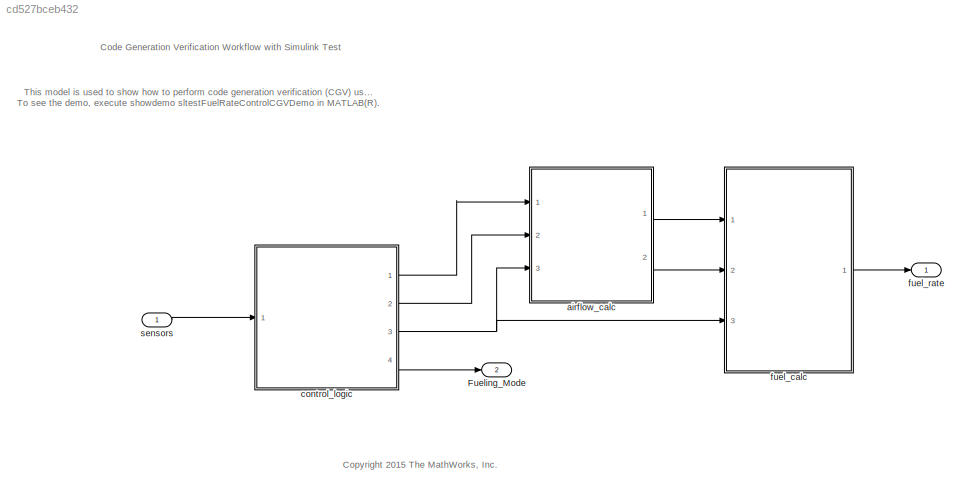
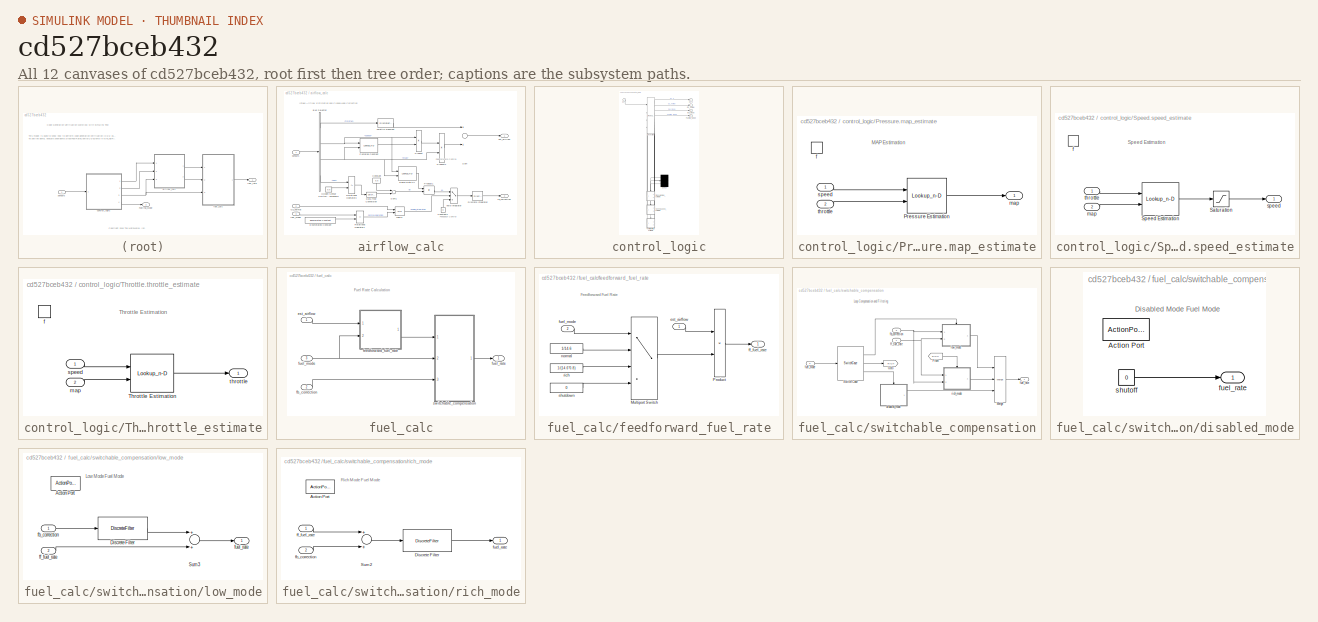
[diagram: thumbnail index - all 12 canvases of the model, root first then tree order]
MODEL slx_cd527bceb432
KIND model
CONFIG AbsTol = 1e-6
CONFIG FixedStep = 0.01
CONFIG MaxStep = auto
CONFIG MinStep = auto
CONFIG PostLoadFcn = load sltestFuelRateControlData.mat
CONFIG RelTol = 1e-5
CONFIG SampleTimeConstraint = Unconstrained
CONFIG Solver = FixedStepDiscrete
CONFIG SolverMode = SingleTasking
CONFIG SolverName = FixedStepDiscrete
CONFIG StartTime = 0.0
CONFIG StopTime = 2000
WORKSPACE source: MAT-file member
WORKSPACE PressEst = [0.806253176324 0.553142316929 0.37151500209 0.277667903103 0.220198954207 0.181288665766 0.153200000489 0.115431020872 0.0913067476324 0.0746519188607 0.0625231108324 0.0533383634277 ... (306 elements, 18x17)]
WORKSPACE PressVect = [0.05 0.1 0.15 0.2 0.25 0.3 0.35 0.4 0.45 0.5 0.55 0.6 ... (19 elements, 1x19)]
BLOCK [Outport] Fueling_Mode
  IconDisplay = Port number
  Port = 2
  PortDimensions = 1
  SampleTime = [0.01,0]
  SamplingMode = Sample based
  SignalType = real
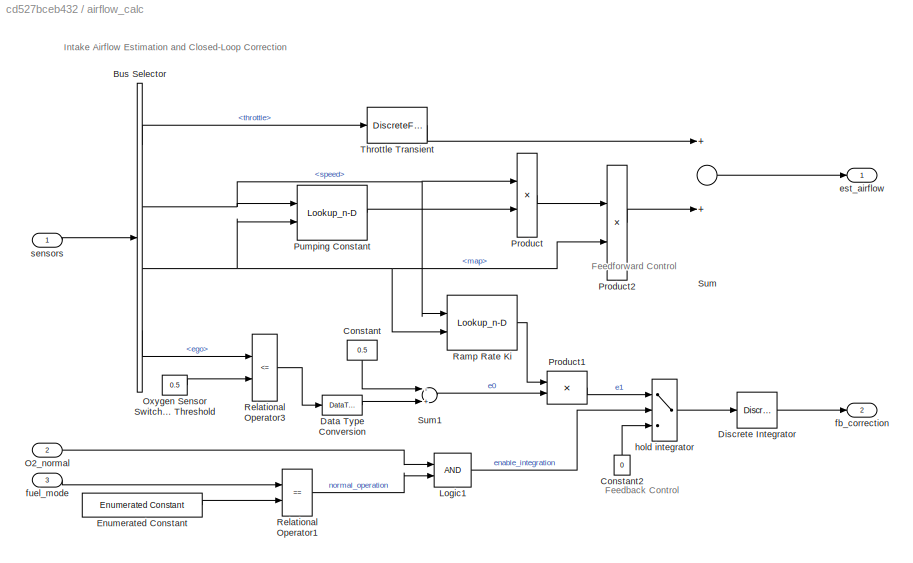
BLOCK [SubSystem] airflow_calc
  Ports = [3, 2]
  RequestExecContextInheritance = off
  Variant = off
BLOCK [BusSelector] airflow_calc/Bus Selector
  OutputSignals = throttle,speed,map,ego
  Ports = [1, 4]
BLOCK [Constant] airflow_calc/Constant
  OutDataTypeStr = s16En7
  Value = 0.5
BLOCK [Constant] airflow_calc/Constant2
  OutDataTypeStr = uint8
  Value = 0
BLOCK [DataTypeConversion] airflow_calc/Data Type Conversion
  OutDataTypeStr = s16En7
  RndMeth = Simplest
  SaturateOnIntegerOverflow = off
BLOCK [DiscreteIntegrator] airflow_calc/Discrete Integrator
  ICPrevOutput = DiscIntNeverNeededParam
  ICPrevScaledInput = DiscIntNeverNeededParam
  InitialConditionSetting = State (most efficient)
  OutDataTypeStr = s16En15
  Ports = [1, 1]
  RndMeth = Simplest
  SampleTime = -1
BLOCK [Reference] airflow_calc/Enumerated Constant  REF=simulink/Sources/Enumerated
Constant
  Ports = [0, 1]
  SourceBlock = simulink/Sources/Enumerated\nConstant
  SourceType = Enumerated Constant
BLOCK [Logic] airflow_calc/Logic1
  AllPortsSameDT = off
  IconShape = distinctive
  OutDataTypeStr = boolean
  Ports = [2, 1]
BLOCK [Inport] airflow_calc/O2_normal
  IconDisplay = Port number
  Port = 2
BLOCK [Constant] airflow_calc/Oxygen Sensor Switching Threshold
  OutDataTypeStr = s16En7
  Value = 0.5
BLOCK [Product] airflow_calc/Product
  InputSameDT = off
  OutDataTypeStr = s16En7
  Ports = [2, 1]
  RndMeth = Simplest
  SaturateOnIntegerOverflow = off
BLOCK [Product] airflow_calc/Product1
  InputSameDT = off
  OutDataTypeStr = s16En15
  Ports = [2, 1]
  RndMeth = Simplest
  SaturateOnIntegerOverflow = off
BLOCK [Product] airflow_calc/Product2
  InputSameDT = off
  OutDataTypeStr = s16En7
  Ports = [2, 1]
  RndMeth = Simplest
  SaturateOnIntegerOverflow = off
BLOCK [Lookup_n-D] airflow_calc/Pumping Constant
  BreakpointsForDimension1 = SpeedVect
  BreakpointsForDimension2 = PressVect
  ExtrapMethod = Clip
  IndexSearchMethod = Linear search
  InputSameDT = off
  OutDataTypeStr = s16En15
  Ports = [2, 1]
  RndMeth = Simplest
  Table = PumpCon
  UseLastTableValue = on
BLOCK [Lookup_n-D] airflow_calc/Ramp Rate Ki
  BreakpointsForDimension1 = RampRateKiX
  BreakpointsForDimension2 = RampRateKiY
  ExtrapMethod = Clip
  IndexSearchMethod = Linear search
  InputSameDT = off
  OutDataTypeStr = s16En15
  Ports = [2, 1]
  RndMeth = Simplest
  Table = RampRateKiZ
  UseLastTableValue = on
BLOCK [RelationalOperator] airflow_calc/Relational Operator1
  Operator = ==
  OutDataTypeStr = boolean
  Ports = [2, 1]
BLOCK [RelationalOperator] airflow_calc/Relational Operator3
  InputSameDT = off
  Operator = <=
  OutDataTypeStr = boolean
  Ports = [2, 1]
BLOCK [Sum] airflow_calc/Sum
  InputSameDT = off
  Inputs = 2
  OutDataTypeStr = s16En7
  Ports = [2, 1]
  RndMeth = Simplest
  SaturateOnIntegerOverflow = off
BLOCK [Sum] airflow_calc/Sum1
  InputSameDT = off
  Inputs = -+
  OutDataTypeStr = s16En15
  Ports = [2, 1]
  RndMeth = Simplest
  SaturateOnIntegerOverflow = off
BLOCK [DiscreteFilter] airflow_calc/Throttle Transient
  Denominator = [1 -.8]
  InputPortMap = u0
  Numerator = [.01 -.01]
  OutDataTypeStr = s16En7
  Ports = [1, 1]
  RndMeth = Simplest
  a0EqualsOne = on
BLOCK [Outport] airflow_calc/est_airflow
  IconDisplay = Port number
BLOCK [Outport] airflow_calc/fb_correction
  IconDisplay = Port number
  Port = 2
BLOCK [Inport] airflow_calc/fuel_mode
  IconDisplay = Port number
  Port = 3
BLOCK [Switch] airflow_calc/hold integrator
  Criteria = u2 ~= 0
  InputSameDT = off
  OutDataTypeStr = s16En15
  RndMeth = Simplest
  SaturateOnIntegerOverflow = off
  Threshold = 1
BLOCK [Inport] airflow_calc/sensors
  IconDisplay = Port number
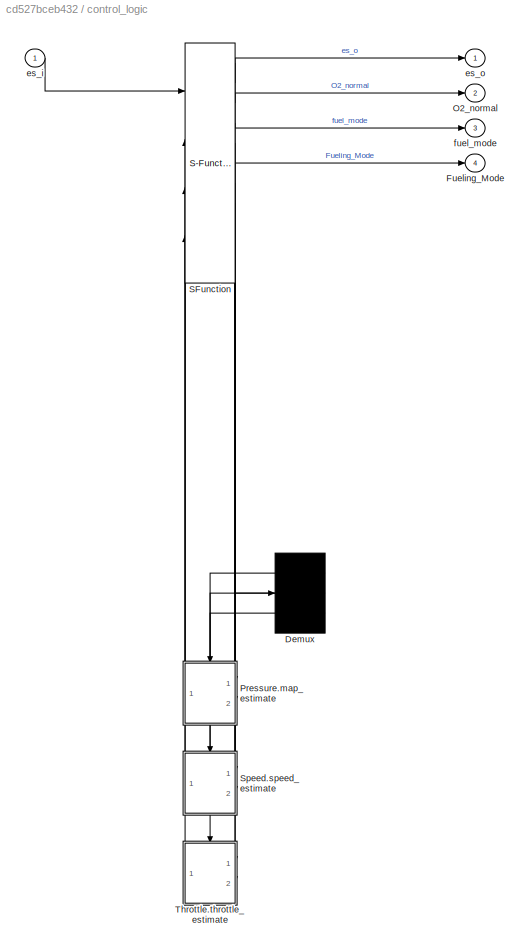
BLOCK [SubSystem] control_logic
  Description = Stateflow diagram to determine control system operating mode
  ErrorFcn = Stateflow.Translate.translate
  PermitHierarchicalResolution = ExplicitOnly
  Ports = [1, 4]
  RequestExecContextInheritance = off
  SFBlockType = Chart
  TreatAsAtomicUnit = on
  Variant = off
BLOCK [Demux] control_logic/ Demux 
  Outputs = 3
  Ports = [1, 3]
BLOCK [Outport] control_logic/ Fueling_Mode
  IconDisplay = Port number
  Port = 4
BLOCK [Outport] control_logic/ O2_normal
  IconDisplay = Port number
  Port = 2
BLOCK [S-Function] control_logic/ SFunction 
  EnableBusSupport = off
  FunctionName = sf_sfun
  Parameters = hys,max_ego,max_press,max_speed,max_throt,min_press,min_throt,zero_thresh
  PortCounts = [4 11]
  Ports = [4, 11]
  SFunctionDeploymentMode = off
  Tag = Stateflow S-Function sltestFuelRateControlExample 1
BLOCK [SubSystem] control_logic/Pressure.map_estimate
  Ports = [2, 1, 0, 1]
  PreDeleteFcn = Stateflow.SLINSF.SimulinkMan.removePreDeleteFcn
  RequestExecContextInheritance = off
  UndoDeleteFcn = Stateflow.SLINSF.SimulinkMan.restorePreDeleteFcn
  Variant = off
BLOCK [Lookup_n-D] control_logic/Pressure.map_estimate/Pressure Estimation
  BreakpointsForDimension1 = SpeedVect
  BreakpointsForDimension2 = ThrotVect
  ExtrapMethod = Clip
  IndexSearchMethod = Linear search
  InputSameDT = off
  OutDataTypeStr = u8En7
  Ports = [2, 1]
  RndMeth = Simplest
  Table = PressEst
  UseLastTableValue = on
BLOCK [TriggerPort] control_logic/Pressure.map_estimate/f
  CopyFcn = Stateflow.SLINSF.SimulinkMan.removeBlockPreDeleteFcn
  Ports = []
  PreDeleteFcn = Stateflow.SLINSF.SimulinkMan.unsafePredeleteFcn
  StatesWhenEnabling = held
  TriggerType = function-call
  VariantControl = Variant
BLOCK [Outport] control_logic/Pressure.map_estimate/map
  IconDisplay = Port number
BLOCK [Inport] control_logic/Pressure.map_estimate/speed
  IconDisplay = Port number
  OutDataTypeStr = s16En3
BLOCK [Inport] control_logic/Pressure.map_estimate/throttle
  IconDisplay = Port number
  OutDataTypeStr = s16En3
  Port = 2
BLOCK [SubSystem] control_logic/Speed.speed_estimate
  Ports = [2, 1, 0, 1]
  PreDeleteFcn = Stateflow.SLINSF.SimulinkMan.removePreDeleteFcn
  RequestExecContextInheritance = off
  UndoDeleteFcn = Stateflow.SLINSF.SimulinkMan.restorePreDeleteFcn
  Variant = off
BLOCK [Saturate] control_logic/Speed.speed_estimate/Saturation
  InputPortMap = u0
  LowerLimit = 0
  OutDataTypeStr = s16En3
  Ports = [1, 1]
  UpperLimit = max_speed
BLOCK [Lookup_n-D] control_logic/Speed.speed_estimate/Speed Estimation
  BreakpointsForDimension1 = ThrotVect
  BreakpointsForDimension2 = PressVect
  ExtrapMethod = Clip
  IndexSearchMethod = Linear search
  InputSameDT = off
  OutDataTypeStr = s16En3
  Ports = [2, 1]
  RndMeth = Simplest
  Table = SpeedEst
  UseLastTableValue = on
BLOCK [TriggerPort] control_logic/Speed.speed_estimate/f
  CopyFcn = Stateflow.SLINSF.SimulinkMan.removeBlockPreDeleteFcn
  Ports = []
  PreDeleteFcn = Stateflow.SLINSF.SimulinkMan.unsafePredeleteFcn
  StatesWhenEnabling = held
  TriggerType = function-call
  VariantControl = Variant
BLOCK [Inport] control_logic/Speed.speed_estimate/map
  IconDisplay = Port number
  OutDataTypeStr = u8En7
  Port = 2
BLOCK [Outport] control_logic/Speed.speed_estimate/speed
  IconDisplay = Port number
BLOCK [Inport] control_logic/Speed.speed_estimate/throttle
  IconDisplay = Port number
  OutDataTypeStr = s16En3
BLOCK [SubSystem] control_logic/Throttle.throttle_estimate
  Ports = [2, 1, 0, 1]
  PreDeleteFcn = Stateflow.SLINSF.SimulinkMan.removePreDeleteFcn
  RequestExecContextInheritance = off
  UndoDeleteFcn = Stateflow.SLINSF.SimulinkMan.restorePreDeleteFcn
  Variant = off
BLOCK [Lookup_n-D] control_logic/Throttle.throttle_estimate/Throttle Estimation
  BreakpointsForDimension1 = SpeedVect
  BreakpointsForDimension2 = PressVect
  ExtrapMethod = Clip
  IndexSearchMethod = Linear search
  InputSameDT = off
  OutDataTypeStr = s16En7
  Ports = [2, 1]
  RndMeth = Simplest
  Table = ThrotEst
  UseLastTableValue = on
BLOCK [TriggerPort] control_logic/Throttle.throttle_estimate/f
  CopyFcn = Stateflow.SLINSF.SimulinkMan.removeBlockPreDeleteFcn
  Ports = []
  PreDeleteFcn = Stateflow.SLINSF.SimulinkMan.unsafePredeleteFcn
  StatesWhenEnabling = held
  TriggerType = function-call
  VariantControl = Variant
BLOCK [Inport] control_logic/Throttle.throttle_estimate/map
  IconDisplay = Port number
  OutDataTypeStr = u8En7
  Port = 2
BLOCK [Inport] control_logic/Throttle.throttle_estimate/speed
  IconDisplay = Port number
  OutDataTypeStr = s16En3
BLOCK [Outport] control_logic/Throttle.throttle_estimate/throttle
  IconDisplay = Port number
BLOCK [Inport] control_logic/es_i
  IconDisplay = Port number
BLOCK [Outport] control_logic/es_o
  IconDisplay = Port number
BLOCK [Outport] control_logic/fuel_mode
  IconDisplay = Port number
  Port = 3
BLOCK [SubSystem] fuel_calc
  Ports = [3, 1]
  RequestExecContextInheritance = off
  Variant = off
BLOCK [Inport] fuel_calc/est_airflow
  IconDisplay = Port number
BLOCK [Inport] fuel_calc/fb_correction
  IconDisplay = Port number
  Port = 2
BLOCK [SubSystem] fuel_calc/feedforward_fuel_rate
  Ports = [2, 1]
  RequestExecContextInheritance = off
  Variant = off
BLOCK [MultiPortSwitch] fuel_calc/feedforward_fuel_rate/Multiport Switch
  DataPortIndices = {sld_FuelModes.LOW, sld_FuelModes.RICH, sld_FuelModes.DISABLED}
  DataPortOrder = Specify indices
  InputSameDT = off
  OutDataTypeStr = s16En7
  Ports = [4, 1]
  RndMeth = Simplest
  SaturateOnIntegerOverflow = off
BLOCK [Product] fuel_calc/feedforward_fuel_rate/Product
  InputSameDT = off
  OutDataTypeStr = s16En7
  Ports = [2, 1]
  RndMeth = Simplest
  SaturateOnIntegerOverflow = off
BLOCK [Inport] fuel_calc/feedforward_fuel_rate/est_airflow
  IconDisplay = Port number
BLOCK [Outport] fuel_calc/feedforward_fuel_rate/ff_fuel_rate
  IconDisplay = Port number
BLOCK [Inport] fuel_calc/feedforward_fuel_rate/fuel_mode
  IconDisplay = Port number
  Port = 2
BLOCK [Constant] fuel_calc/feedforward_fuel_rate/normal
  OutDataTypeStr = s16En7
  Value = 1/14.6
BLOCK [Constant] fuel_calc/feedforward_fuel_rate/rich
  OutDataTypeStr = s16En7
  Value = 1/(14.6*0.8)
BLOCK [Constant] fuel_calc/feedforward_fuel_rate/shutdown
  OutDataTypeStr = s16En7
  Value = 0
BLOCK [Inport] fuel_calc/fuel_mode
  IconDisplay = Port number
  Port = 3
BLOCK [Outport] fuel_calc/fuel_rate
  IconDisplay = Port number
BLOCK [SubSystem] fuel_calc/switchable_compensation
  Ports = [3, 1]
  RequestExecContextInheritance = off
  Variant = off
BLOCK [From] fuel_calc/switchable_compensation/From
  GotoTag = RICH
BLOCK [Goto] fuel_calc/switchable_compensation/Goto
  GotoTag = RICH
BLOCK [Merge] fuel_calc/switchable_compensation/Merge
  Inputs = 3
  Ports = [3, 1]
BLOCK [SwitchCase] fuel_calc/switchable_compensation/Switch Case
  CaseConditions = {sld_FuelModes.LOW, sld_FuelModes.RICH}
  Ports = [1, 3]
BLOCK [SubSystem] fuel_calc/switchable_compensation/disabled_mode
  Ports = [0, 1, 0, 0, 0, 0, 0, 1]
  RequestExecContextInheritance = off
  TreatAsAtomicUnit = on
  Variant = off
BLOCK [ActionPort] fuel_calc/switchable_compensation/disabled_mode/Action Port
  ActionType = default
BLOCK [Outport] fuel_calc/switchable_compensation/disabled_mode/fuel_rate
  IconDisplay = Port number
  InitialOutput = 0
BLOCK [Constant] fuel_calc/switchable_compensation/disabled_mode/shutoff
  OutDataTypeStr = Inherit: Inherit via back propagation
  Value = 0
BLOCK [Inport] fuel_calc/switchable_compensation/fb_correction
  IconDisplay = Port number
  Port = 3
BLOCK [Inport] fuel_calc/switchable_compensation/ff_fuel_rate
  IconDisplay = Port number
BLOCK [Inport] fuel_calc/switchable_compensation/fuel_mode
  IconDisplay = Port number
  Port = 2
BLOCK [Outport] fuel_calc/switchable_compensation/fuel_rate
  IconDisplay = Port number
BLOCK [SubSystem] fuel_calc/switchable_compensation/low_mode
  Ports = [2, 1, 0, 0, 0, 0, 0, 1]
  RequestExecContextInheritance = off
  TreatAsAtomicUnit = on
  Variant = off
BLOCK [ActionPort] fuel_calc/switchable_compensation/low_mode/Action Port
  ActionType = case
BLOCK [DiscreteFilter] fuel_calc/switchable_compensation/low_mode/Discrete Filter
  Denominator = [1 -0.7408]
  InputPortMap = u0
  Numerator = [8.7696 -8.5104]
  OutDataTypeStr = Inherit: Same as input
  Ports = [1, 1]
  RndMeth = Simplest
  a0EqualsOne = on
BLOCK [Sum] fuel_calc/switchable_compensation/low_mode/Sum3
  InputSameDT = off
  OutDataTypeStr = s16En7
  Ports = [2, 1]
  RndMeth = Simplest
  SaturateOnIntegerOverflow = off
BLOCK [Inport] fuel_calc/switchable_compensation/low_mode/fb_correction
  IconDisplay = Port number
BLOCK [Inport] fuel_calc/switchable_compensation/low_mode/ff_fuel_rate
  IconDisplay = Port number
  Port = 2
BLOCK [Outport] fuel_calc/switchable_compensation/low_mode/fuel_rate
  IconDisplay = Port number
  InitialOutput = 0
BLOCK [SubSystem] fuel_calc/switchable_compensation/rich_mode
  Ports = [2, 1, 0, 0, 0, 0, 0, 1]
  RequestExecContextInheritance = off
  TreatAsAtomicUnit = on
  Variant = off
BLOCK [ActionPort] fuel_calc/switchable_compensation/rich_mode/Action Port
  ActionType = case
BLOCK [DiscreteFilter] fuel_calc/switchable_compensation/rich_mode/Discrete Filter
  Denominator = [1 -0.7408]
  InputPortMap = u0
  Numerator = [0 0.2592]
  OutDataTypeStr = Inherit: Same as input
  Ports = [1, 1]
  RndMeth = Simplest
  a0EqualsOne = on
BLOCK [Sum] fuel_calc/switchable_compensation/rich_mode/Sum2
  InputSameDT = off
  OutDataTypeStr = s16En7
  Ports = [2, 1]
  RndMeth = Simplest
  SaturateOnIntegerOverflow = off
BLOCK [Inport] fuel_calc/switchable_compensation/rich_mode/fb_correction
  IconDisplay = Port number
  Port = 2
BLOCK [Inport] fuel_calc/switchable_compensation/rich_mode/ff_fuel_rate
  IconDisplay = Port number
BLOCK [Outport] fuel_calc/switchable_compensation/rich_mode/fuel_rate
  IconDisplay = Port number
  InitialOutput = 0
BLOCK [Outport] fuel_rate
  IconDisplay = Port number
  OutDataTypeStr = single
  PortDimensions = 1
  SampleTime = [0.01,0]
  SamplingMode = Sample based
  SignalType = real
BLOCK [Inport] sensors
  BusOutputAsStruct = on
  IconDisplay = Port number
  OutDataTypeStr = Bus: EngSensors
  PortDimensions = 1
  SampleTime = [0.01,0]
ANNOTATION (root): This model is used to show how to perform code generation verification (CGV) using test harnesses, Test Sequence blocks and the test manager. To see the demo, execute showdemo sltestFuelRateControlCGVDemo in MATLAB(R).
ANNOTATION (root): Code Generation Verification Workflow with Simulink Test
ANNOTATION (root): <copyright redacted>
ANNOTATION airflow_calc: Feedback Control
ANNOTATION airflow_calc: Feedforward Control
ANNOTATION airflow_calc: Intake Airflow Estimation and Closed-Loop Correction
ANNOTATION control_logic/Pressure.map_estimate: MAP Estimation
ANNOTATION control_logic/Speed.speed_estimate: Speed Estimation
ANNOTATION control_logic/Throttle.throttle_estimate: Throttle Estimation
ANNOTATION fuel_calc: Fuel Rate Calculation
ANNOTATION fuel_calc/feedforward_fuel_rate: Feedforward Fuel Rate
ANNOTATION fuel_calc/switchable_compensation: Loop Compensation and Filtering
ANNOTATION fuel_calc/switchable_compensation/disabled_mode: Disabled Mode Fuel Mode
ANNOTATION fuel_calc/switchable_compensation/low_mode: Low Mode Fuel Mode
ANNOTATION fuel_calc/switchable_compensation/rich_mode: Rich Mode Fuel Mode
LINE airflow_calc/Bus Selector:1 -> airflow_calc/Throttle Transient:1
NET airflow_calc/Bus Selector:2 -> airflow_calc/Product:1, airflow_calc/Pumping Constant:1, airflow_calc/Ramp Rate Ki:1
NET airflow_calc/Bus Selector:3 -> airflow_calc/Product2:2, airflow_calc/Pumping Constant:2, airflow_calc/Ramp Rate Ki:2
LINE airflow_calc/Bus Selector:4 -> airflow_calc/Relational Operator3:1
LINE airflow_calc/Constant2:1 -> airflow_calc/hold integrator:3
LINE airflow_calc/Constant:1 -> airflow_calc/Sum1:1
LINE airflow_calc/Data Type Conversion:1 -> airflow_calc/Sum1:2
LINE airflow_calc/Discrete Integrator:1 -> airflow_calc/fb_correction:1
LINE airflow_calc/Enumerated Constant:1 -> airflow_calc/Relational Operator1:2
LINE airflow_calc/Logic1:1 -> airflow_calc/hold integrator:2
LINE airflow_calc/O2_normal:1 -> airflow_calc/Logic1:1
LINE airflow_calc/Oxygen Sensor Switching Threshold:1 -> airflow_calc/Relational Operator3:2
LINE airflow_calc/Product1:1 -> airflow_calc/hold integrator:1
LINE airflow_calc/Product2:1 -> airflow_calc/Sum:2
LINE airflow_calc/Product:1 -> airflow_calc/Product2:1
LINE airflow_calc/Pumping Constant:1 -> airflow_calc/Product:2
LINE airflow_calc/Ramp Rate Ki:1 -> airflow_calc/Product1:1
LINE airflow_calc/Relational Operator1:1 -> airflow_calc/Logic1:2
LINE airflow_calc/Relational Operator3:1 -> airflow_calc/Data Type Conversion:1
LINE airflow_calc/Sum1:1 -> airflow_calc/Product1:2
LINE airflow_calc/Sum:1 -> airflow_calc/est_airflow:1
LINE airflow_calc/Throttle Transient:1 -> airflow_calc/Sum:1
LINE airflow_calc/fuel_mode:1 -> airflow_calc/Relational Operator1:1
LINE airflow_calc/hold integrator:1 -> airflow_calc/Discrete Integrator:1
LINE airflow_calc/sensors:1 -> airflow_calc/Bus Selector:1
LINE airflow_calc:1 -> fuel_calc:1
LINE airflow_calc:2 -> fuel_calc:2
LINE control_logic:1 -> airflow_calc:1
LINE control_logic:2 -> airflow_calc:2
NET control_logic:3 -> airflow_calc:3, fuel_calc:3
LINE control_logic:4 -> Fueling_Mode:1
LINE fuel_calc/est_airflow:1 -> fuel_calc/feedforward_fuel_rate:1
LINE fuel_calc/fb_correction:1 -> fuel_calc/switchable_compensation:3
LINE fuel_calc/feedforward_fuel_rate/Multiport Switch:1 -> fuel_calc/feedforward_fuel_rate/Product:2
LINE fuel_calc/feedforward_fuel_rate/Product:1 -> fuel_calc/feedforward_fuel_rate/ff_fuel_rate:1
LINE fuel_calc/feedforward_fuel_rate/est_airflow:1 -> fuel_calc/feedforward_fuel_rate/Product:1
LINE fuel_calc/feedforward_fuel_rate/fuel_mode:1 -> fuel_calc/feedforward_fuel_rate/Multiport Switch:1
LINE fuel_calc/feedforward_fuel_rate/normal:1 -> fuel_calc/feedforward_fuel_rate/Multiport Switch:2
LINE fuel_calc/feedforward_fuel_rate/rich:1 -> fuel_calc/feedforward_fuel_rate/Multiport Switch:3
LINE fuel_calc/feedforward_fuel_rate/shutdown:1 -> fuel_calc/feedforward_fuel_rate/Multiport Switch:4
LINE fuel_calc/feedforward_fuel_rate:1 -> fuel_calc/switchable_compensation:1
NET fuel_calc/fuel_mode:1 -> fuel_calc/feedforward_fuel_rate:2, fuel_calc/switchable_compensation:2
LINE fuel_calc/switchable_compensation/From:1 -> fuel_calc/switchable_compensation/rich_mode:ifaction
LINE fuel_calc/switchable_compensation/Merge:1 -> fuel_calc/switchable_compensation/fuel_rate:1
LINE fuel_calc/switchable_compensation/Switch Case:1 -> fuel_calc/switchable_compensation/low_mode:ifaction
LINE fuel_calc/switchable_compensation/Switch Case:2 -> fuel_calc/switchable_compensation/Goto:1
LINE fuel_calc/switchable_compensation/Switch Case:3 -> fuel_calc/switchable_compensation/disabled_mode:ifaction
LINE fuel_calc/switchable_compensation/disabled_mode/shutoff:1 -> fuel_calc/switchable_compensation/disabled_mode/fuel_rate:1
LINE fuel_calc/switchable_compensation/disabled_mode:1 -> fuel_calc/switchable_compensation/Merge:3
NET fuel_calc/switchable_compensation/fb_correction:1 -> fuel_calc/switchable_compensation/low_mode:1, fuel_calc/switchable_compensation/rich_mode:2
NET fuel_calc/switchable_compensation/ff_fuel_rate:1 -> fuel_calc/switchable_compensation/low_mode:2, fuel_calc/switchable_compensation/rich_mode:1
LINE fuel_calc/switchable_compensation/fuel_mode:1 -> fuel_calc/switchable_compensation/Switch Case:1
LINE fuel_calc/switchable_compensation/low_mode/Discrete Filter:1 -> fuel_calc/switchable_compensation/low_mode/Sum3:1
LINE fuel_calc/switchable_compensation/low_mode/Sum3:1 -> fuel_calc/switchable_compensation/low_mode/fuel_rate:1
LINE fuel_calc/switchable_compensation/low_mode/fb_correction:1 -> fuel_calc/switchable_compensation/low_mode/Discrete Filter:1
LINE fuel_calc/switchable_compensation/low_mode/ff_fuel_rate:1 -> fuel_calc/switchable_compensation/low_mode/Sum3:2
LINE fuel_calc/switchable_compensation/low_mode:1 -> fuel_calc/switchable_compensation/Merge:1
LINE fuel_calc/switchable_compensation/rich_mode/Discrete Filter:1 -> fuel_calc/switchable_compensation/rich_mode/fuel_rate:1
LINE fuel_calc/switchable_compensation/rich_mode/Sum2:1 -> fuel_calc/switchable_compensation/rich_mode/Discrete Filter:1
LINE fuel_calc/switchable_compensation/rich_mode/fb_correction:1 -> fuel_calc/switchable_compensation/rich_mode/Sum2:2
LINE fuel_calc/switchable_compensation/rich_mode/ff_fuel_rate:1 -> fuel_calc/switchable_compensation/rich_mode/Sum2:1
LINE fuel_calc/switchable_compensation/rich_mode:1 -> fuel_calc/switchable_compensation/Merge:2
LINE fuel_calc/switchable_compensation:1 -> fuel_calc/fuel_rate:1
LINE fuel_calc:1 -> fuel_rate:1
LINE sensors:1 -> control_logic:1
note: NET lines group one-source signal fan-out (src -> all destinations, sorted); 1:1 wires keep LINE
CHART Assess Controller states=3 transitions=3
  STATE_LABEL 'GeneralAssessment'
  STATE_LABEL 'Warmup\nassert(fueling_mode == Fueling_ModeType.Warmup)'
  STATE_LABEL "Overspeed\nif(act_speed > 628) % max_speed = 628\n    assert(fueling_mode == Fueling_ModeType.Overspeed,'Not in Overspeed')\nend\n\n% Multifailure\n\nif(sensors.ego == 12 && sensors.map == 0)\n    assert(fueling_mode ~= Fueling_ModeType.Single_Failure, 'Not in Single_Failure')\nend"
  STATE_LABEL '[et >= 4.8]'
  STATE_LABEL 'Warmup\nassert(fueling_mode == Fueling_ModeType.Warmup)'
  STATE_LABEL "Overspeed\nif(act_speed > 628) % max_speed = 628\n    assert(fueling_mode == Fueling_ModeType.Overspeed,'Not in Overspeed')\nend\n\n% Multifailure\n\nif(sensors.ego == 12 && sensors.map == 0)\n    assert(fueling_mode ~= Fueling_ModeType.Single_Failure, 'Not in Single_Failure')\nend"
CHART Engine Gas Dynamics/Throttle & Manifold/Throttle/f(theta) states=1 transitions=1
  STATE_LABEL 'eML_blk_kernel()'
  STATE_LABEL 'SCRIPT:\nfunction y = f(u)\n%#codegen\n\ny = 2.821 - 0.05231*u + 0.10299*u^2 - 0.00063*u^3;'
CHART Engine Gas Dynamics/Throttle & Manifold/Throttle/g(pratio) states=1 transitions=1
  STATE_LABEL 'eML_blk_kernel()'
  STATE_LABEL 'SCRIPT:\nfunction y = g(u)\n%#codegen\n\ny = 2*sqrt(u - u^2);'
CHART Engine Gas Dynamics/Throttle & Manifold/Intake Manifold/MATLAB Function states=1 transitions=1
  STATE_LABEL 'eML_blk_kernel()'
  STATE_LABEL 'SCRIPT:\nfunction y = pumping(u1,u2)\n%#codegen\n\ny = -0.366 + 0.08979*u1*u2 - 0.0337*u2*u1^2 + 0.0001*u1*u2^2;'
CHART Engine Gas Dynamics/Mixing & Combustion/EGO Sensor states=1 transitions=1
  STATE_LABEL 'eML_blk_kernel()'
  STATE_LABEL 'SCRIPT:\nfunction y = fcn(u)\n%#codegen\n\ny = (1-tanh(4*(u-14.6)))/2;'
CHART Sequence
Sensor Failures states=16 transitions=16
  STATE_LABEL 'Stabilize_Engine\n\nthrottle = 20;  %  0 ==> sensor failure\nspeed = 300; %  0 ==> sensor failure\nego = ego_i;  % 12 ==> sensor failure\nmap = map_i; % 0 ==> sensor failure\nthrottle_act = throttle;\nspeed_act = speed;'
  STATE_LABEL 'Test_Scenarios\n\nthrottle= 10;\nthrottle_act = throttle;\nspeed = 400;\nspeed_act = speed;\nego = ego_i;\nmap = map_i;'
  STATE_LABEL 'Test_Overspeed\nthrottle = 30;\nthrottle_act = throttle;\nspeed = 300+ramp(10*et);\nspeed_act = speed;'
  STATE_LABEL 'Reset_to_Normal_Speed\nthrottle = 10;\nthrottle_act = throttle;\nspeed = 700-ramp(10*et);\nspeed_act = speed;'
  STATE_LABEL 'Waypoint'
  STATE_LABEL 'Test_EGO_Fault\nego = 12;'
  STATE_LABEL 'EGO_Reset'
  STATE_LABEL 'Test_Throttle_Fault\nthrottle = 0;'
  STATE_LABEL 'Throttle_Reset'
  STATE_LABEL 'Test_Speed_Fault\nspeed = 0;'
  STATE_LABEL 'Speed_Reset'
  STATE_LABEL 'Test_MAP_Fault\nmap = 0;'
  STATE_LABEL 'MAP_Reset'
  STATE_LABEL 'Test_Multi_Fault\nmap = 0;\nego = 12;'
  STATE_LABEL 'Reset_MAP\nmap = 0;'
  STATE_LABEL 'Reset_To_Normal\n'
  STATE_LABEL '[speed > 700]'
  STATE_LABEL '[speed < 400]'
  STATE_LABEL '[after(2, sec)]'
  STATE_LABEL '[after(3, sec)]'
  STATE_LABEL '[after(10, sec)]'
  STATE_LABEL '[after(3, sec)]'
  STATE_LABEL '[after(3, sec)]'
  STATE_LABEL '[after(3, sec)]'
  STATE_LABEL '[after(3, sec)]'
  STATE_LABEL '[after(3, sec)]'
  STATE_LABEL '[after(3, sec)]'
  STATE_LABEL '[after(3, sec)]'
  STATE_LABEL '[after(3, sec)]'
  STATE_LABEL 'Test_Overspeed\nthrottle = 30;\nthrottle_act = throttle;\nspeed = 300+ramp(10*et);\nspeed_act = speed;'
  STATE_LABEL 'Reset_to_Normal_Speed\nthrottle = 10;\nthrottle_act = throttle;\nspeed = 700-ramp(10*et);\nspeed_act = speed;'
  STATE_LABEL 'Waypoint'
  STATE_LABEL 'Test_EGO_Fault\nego = 12;'
  STATE_LABEL 'EGO_Reset'
  STATE_LABEL 'Test_Throttle_Fault\nthrottle = 0;'
  STATE_LABEL 'Throttle_Reset'
  STATE_LABEL 'Test_Speed_Fault\nspeed = 0;'
  STATE_LABEL 'Speed_Reset'
  STATE_LABEL 'Test_MAP_Fault\nmap = 0;'
  STATE_LABEL 'MAP_Reset'
CHART control_logic states=34 transitions=35
  STATE_LABEL 'O2'
  STATE_LABEL 'A\ndu:\nes_o.ego = es_i.ego;'
  STATE_LABEL 'O2_warmup'
  STATE_LABEL 'O2_normal'
  STATE_LABEL 'O2_failure'
  STATE_LABEL '[after(480,tick)]'
  STATE_LABEL '[es_i.ego < max_ego] / Fail.DEC;'
  STATE_LABEL '[es_i.ego > max_ego] / Fail.INC;'
  STATE_LABEL 'A\ndu:\nes_o.ego = es_i.ego;'
  STATE_LABEL 'O2_warmup'
  STATE_LABEL 'O2_normal'
  STATE_LABEL 'O2_failure'
  STATE_LABEL '[after(480,tick)]'
  STATE_LABEL '[es_i.ego < max_ego] / Fail.DEC;'
  STATE_LABEL '[es_i.ego > max_ego] / Fail.INC;'
  STATE_LABEL 'O2_warmup'
  STATE_LABEL 'O2_normal'
  STATE_LABEL 'O2_failure'
  STATE_LABEL 'Pressure'
  STATE_LABEL 'normal\ndu:\nes_o.map = es_i.map;'
  STATE_LABEL 'fail\ndu:\nes_o.map = map_estimate(es_i.speed, es_i.throttle);'
  STATE_LABEL 'map = map_estimate(speed, throttle)'
  STATE_LABEL '[es_i.map > min_press & ...\nes_i.map < max_press] /\nFail.DEC;'
  STATE_LABEL '[es_i.map > max_press | ...\nes_i.map < min_press] /\nFail.INC;'
  STATE_LABEL 'normal\ndu:\nes_o.map = es_i.map;'
  STATE_LABEL 'fail\ndu:\nes_o.map = map_estimate(es_i.speed, es_i.throttle);'
  STATE_LABEL 'map = map_estimate(speed, throttle)'
  STATE_LABEL 'Throttle'
  STATE_LABEL 'normal\ndu:\nes_o.throttle = es_i.throttle;'
  STATE_LABEL 'fail\ndu:\nes_o.throttle = throttle_estimate(es_i.speed,es_i.map);'
  STATE_LABEL 'throttle = throttle_estimate(speed, map)'
  STATE_LABEL '[es_i.throttle >  min_throt & ...\nes_i.throttle < max_throt] /\nFail.DEC;'
  STATE_LABEL '[es_i.throttle> max_throt | ...\nes_i.throttle < min_throt] /\nFail.INC;'
  STATE_LABEL 'normal\ndu:\nes_o.throttle = es_i.throttle;'
  STATE_LABEL 'fail\ndu:\nes_o.throttle = throttle_estimate(es_i.speed,es_i.map);'
  STATE_LABEL 'throttle = throttle_estimate(speed, map)'
  STATE_LABEL 'Speed'
  STATE_LABEL 'normal\ndu:\nes_o.speed = es_i.speed;'
  STATE_LABEL 'fail\ndu:\nes_o.speed = speed_estimate(es_i.throttle, es_i.map);'
  STATE_LABEL 'speed = speed_estimate(throttle, map)'
